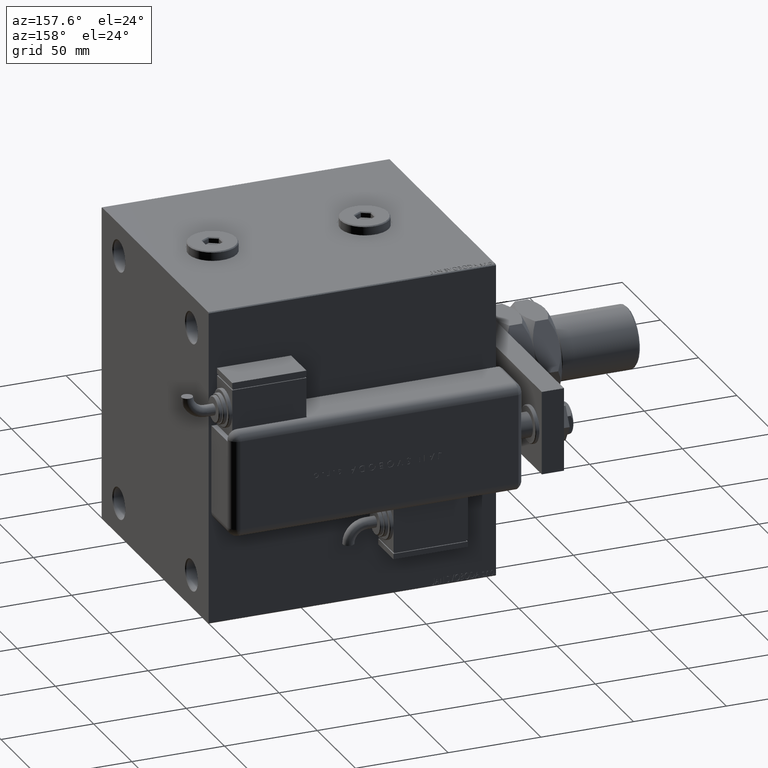
[diagram: clean part render]
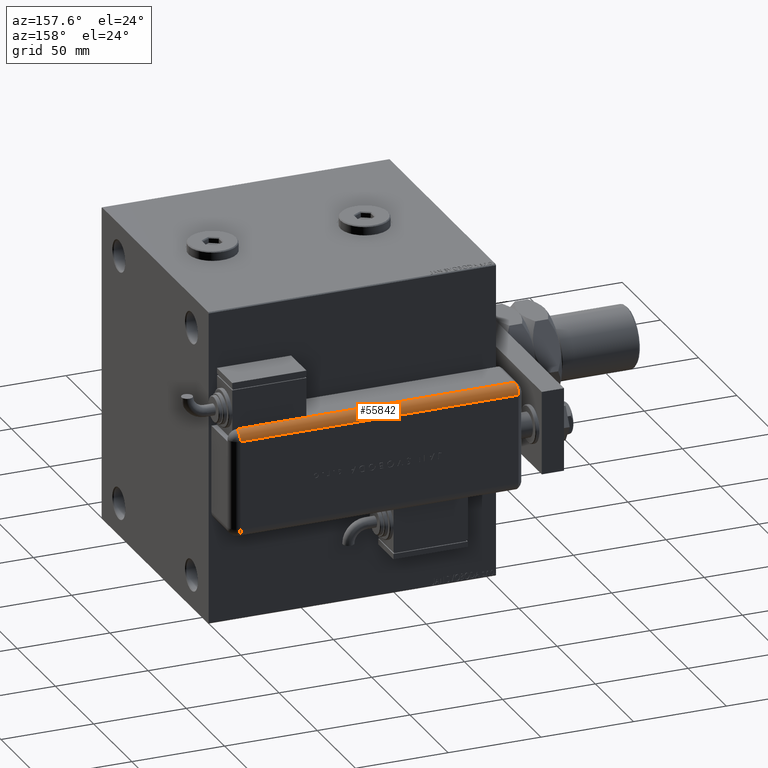
[diagram: same view with one face highlighted and labeled with its STEP entity id]
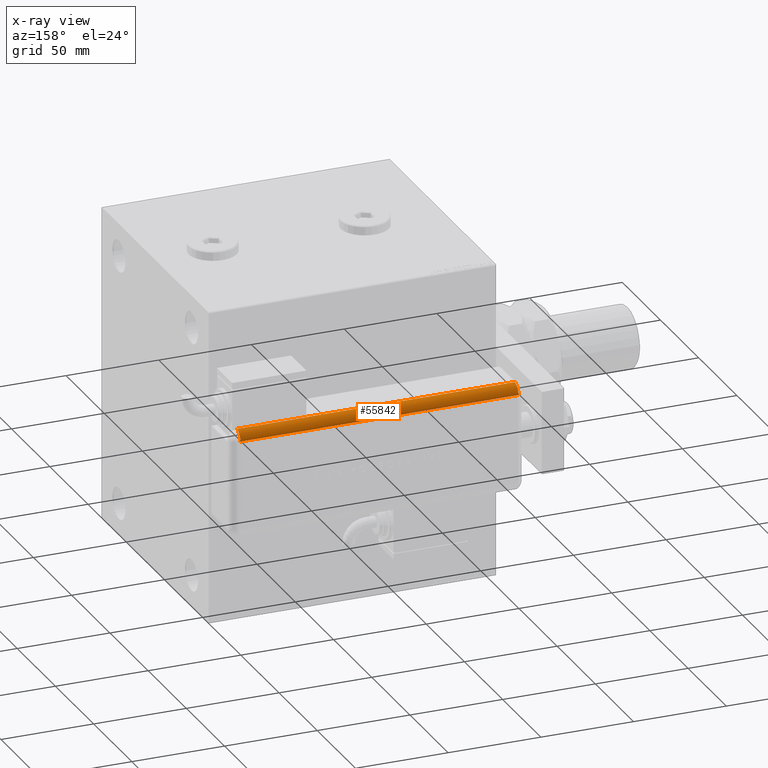
[diagram: x-ray of the same camera — body ghosted, the highlighted face saturated]
A machine part, auxiliary view. The second image highlights one B-rep face of the part: STEP entity #55842.
The next image is the same camera in x-ray: the body ghosted, the highlighted face saturated — about 0% of this face is hidden behind the body in this view.
In plain terms, the highlighted cylindrical surface (edge-blend (fillet) strip) has radius 5 mm, axis along (1, -0, -0).
Its self-contained STEP definition (entity closure, byte-faithful):
#1027 = CARTESIAN_POINT ( 'NONE',  ( 23.99999999999999289, 20.79999999999998295, 43.00000000000000000 ) ) ;
#1084 = VERTEX_POINT ( 'NONE', #34317 ) ;
#5549 = EDGE_LOOP ( 'NONE', ( #27156, #18848, #45312, #16533, #20189, #44807 ) ) ;
#6402 = CIRCLE ( 'NONE', #32904, 5.000000000000000888 ) ;
#8509 = AXIS2_PLACEMENT_3D ( 'NONE', #62159, #53445, #61854 ) ;
#9026 = VERTEX_POINT ( 'NONE', #22516 ) ;
#9462 = CIRCLE ( 'NONE', #8509, 5.000000000000000888 ) ;
#10922 = CYLINDRICAL_SURFACE ( 'NONE', #24065, 5.000000000000000888 ) ;
#12043 = DIRECTION ( 'NONE',  ( -0.000000000000000000, -0.000000000000000000, 1.000000000000000000 ) ) ;
#13147 = CARTESIAN_POINT ( 'NONE',  ( 28.99999999999999645, 20.79999999999998295, 155.0000000000000000 ) ) ;
#13250 = DIRECTION ( 'NONE',  ( 0.000000000000000000, 0.000000000000000000, -1.000000000000000000 ) ) ;
#13609 = EDGE_CURVE ( 'NONE', #25944, #9026, #16596, .T. ) ;
#13803 = CARTESIAN_POINT ( 'NONE',  ( 28.99599839871871154, 20.99999999999999289, 43.00000000000000000 ) ) ;
#15424 = EDGE_CURVE ( 'NONE', #22191, #42807, #9462, .T. ) ;
#16533 = ORIENTED_EDGE ( 'NONE', *, *, #24690, .F. ) ;
#16596 = CIRCLE ( 'NONE', #49219, 5.000000000000000888 ) ;
#17148 = CARTESIAN_POINT ( 'NONE',  ( 28.99599839871871154, 20.99999999999997868, 155.0000000000000000 ) ) ;
#18848 = ORIENTED_EDGE ( 'NONE', *, *, #20390, .F. ) ;
#19190 = DIRECTION ( 'NONE',  ( -1.000000000000000000, 0.000000000000000000, 0.000000000000000000 ) ) ;
#20189 = ORIENTED_EDGE ( 'NONE', *, *, #15424, .F. ) ;
#20390 = EDGE_CURVE ( 'NONE', #53595, #25944, #27662, .T. ) ;
#22184 = EDGE_CURVE ( 'NONE', #9026, #22191, #37727, .T. ) ;
#22191 = VERTEX_POINT ( 'NONE', #13147 ) ;
#22516 = CARTESIAN_POINT ( 'NONE',  ( 28.99999999999999645, 20.79999999999998295, 43.00000000000000000 ) ) ;
#24065 = AXIS2_PLACEMENT_3D ( 'NONE', #59131, #34882, #24644 ) ;
#24347 = DIRECTION ( 'NONE',  ( -0.000000000000000000, 0.000000000000000000, -1.000000000000000000 ) ) ;
#24644 = DIRECTION ( 'NONE',  ( -1.000000000000000000, 0.000000000000000000, 0.000000000000000000 ) ) ;
#24690 = EDGE_CURVE ( 'NONE', #42807, #1084, #51880, .T. ) ;
#25944 = VERTEX_POINT ( 'NONE', #13803 ) ;
#27156 = ORIENTED_EDGE ( 'NONE', *, *, #13609, .F. ) ;
#27662 = LINE ( 'NONE', #17148, #49489 ) ;
#32904 = AXIS2_PLACEMENT_3D ( 'NONE', #33263, #48567, #19190 ) ;
#33263 = CARTESIAN_POINT ( 'NONE',  ( 23.99999999999999289, 20.79999999999998295, 5.000000000000004441 ) ) ;
#34317 = CARTESIAN_POINT ( 'NONE',  ( 23.99999999999999289, 25.79999999999998295, 5.000000000000004441 ) ) ;
#34557 = FACE_OUTER_BOUND ( 'NONE', #5549, .T. ) ;
#34882 = DIRECTION ( 'NONE',  ( 0.000000000000000000, 0.000000000000000000, -1.000000000000000000 ) ) ;
#36988 = CARTESIAN_POINT ( 'NONE',  ( 23.99999999999999289, 25.79999999999998295, 155.0000000000000000 ) ) ;
#37727 = LINE ( 'NONE', #61366, #59701 ) ;
#40424 = CARTESIAN_POINT ( 'NONE',  ( 28.99599839871871154, 21.00000000000000000, 5.000000000000004441 ) ) ;
#41468 = VECTOR ( 'NONE', #13250, 1000.000000000000000 ) ;
#42807 = VERTEX_POINT ( 'NONE', #36988 ) ;
#44384 = EDGE_CURVE ( 'NONE', #53595, #1084, #6402, .T. ) ;
#44807 = ORIENTED_EDGE ( 'NONE', *, *, #22184, .F. ) ;
#45312 = ORIENTED_EDGE ( 'NONE', *, *, #44384, .T. ) ;
#48567 = DIRECTION ( 'NONE',  ( -0.000000000000000000, -0.000000000000000000, 1.000000000000000000 ) ) ;
#49219 = AXIS2_PLACEMENT_3D ( 'NONE', #1027, #24347, #53427 ) ;
#49489 = VECTOR ( 'NONE', #12043, 1000.000000000000000 ) ;
#51880 = LINE ( 'NONE', #56974, #41468 ) ;
#52097 = DIRECTION ( 'NONE',  ( -0.000000000000000000, -0.000000000000000000, 1.000000000000000000 ) ) ;
#53427 = DIRECTION ( 'NONE',  ( 1.000000000000000000, -6.383782391594648845E-14, 0.000000000000000000 ) ) ;
#53445 = DIRECTION ( 'NONE',  ( -0.000000000000000000, -0.000000000000000000, 1.000000000000000000 ) ) ;
#53595 = VERTEX_POINT ( 'NONE', #40424 ) ;
#55842 = ADVANCED_FACE ( 'NONE', ( #34557 ), #10922, .T. ) ;
#56974 = CARTESIAN_POINT ( 'NONE',  ( 23.99999999999999289, 25.79999999999998295, 155.0000000000000000 ) ) ;
#59131 = CARTESIAN_POINT ( 'NONE',  ( 23.99999999999999289, 20.79999999999998295, 155.0000000000000000 ) ) ;
#59701 = VECTOR ( 'NONE', #52097, 1000.000000000000000 ) ;
#61366 = CARTESIAN_POINT ( 'NONE',  ( 28.99999999999999645, 20.79999999999998295, 155.0000000000000000 ) ) ;
#61854 = DIRECTION ( 'NONE',  ( -1.000000000000000000, 0.000000000000000000, 0.000000000000000000 ) ) ;
#62159 = CARTESIAN_POINT ( 'NONE',  ( 23.99999999999999289, 20.79999999999998295, 155.0000000000000000 ) ) ;